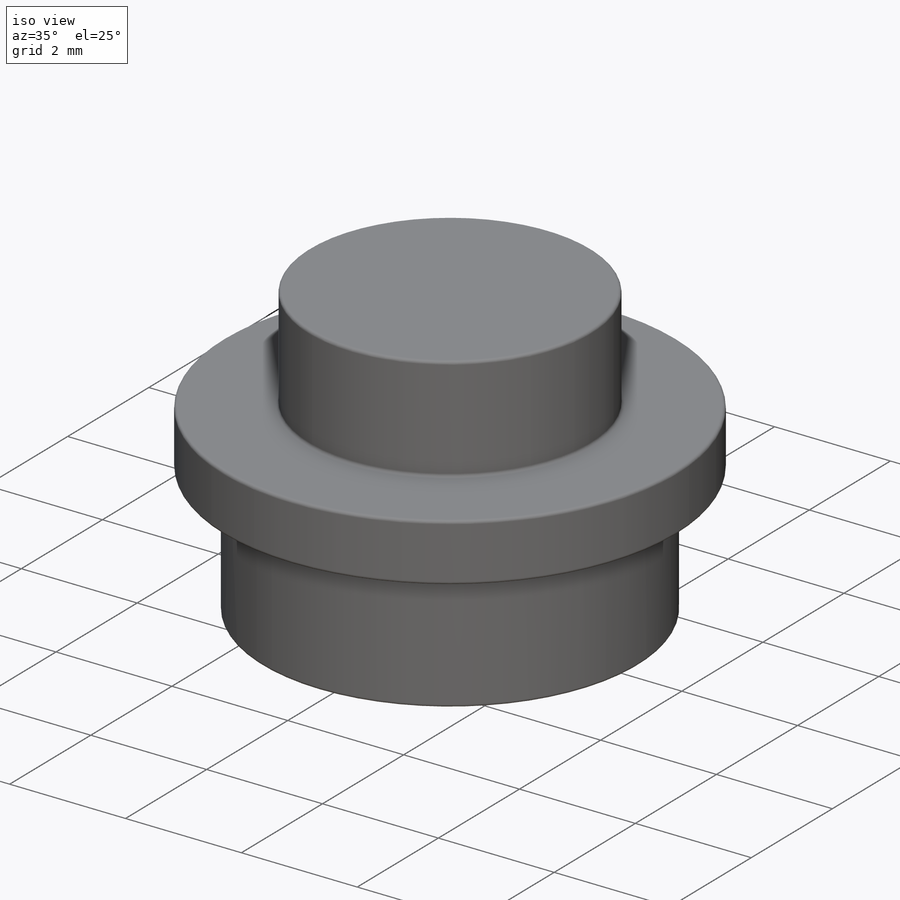
[diagram: iso view]
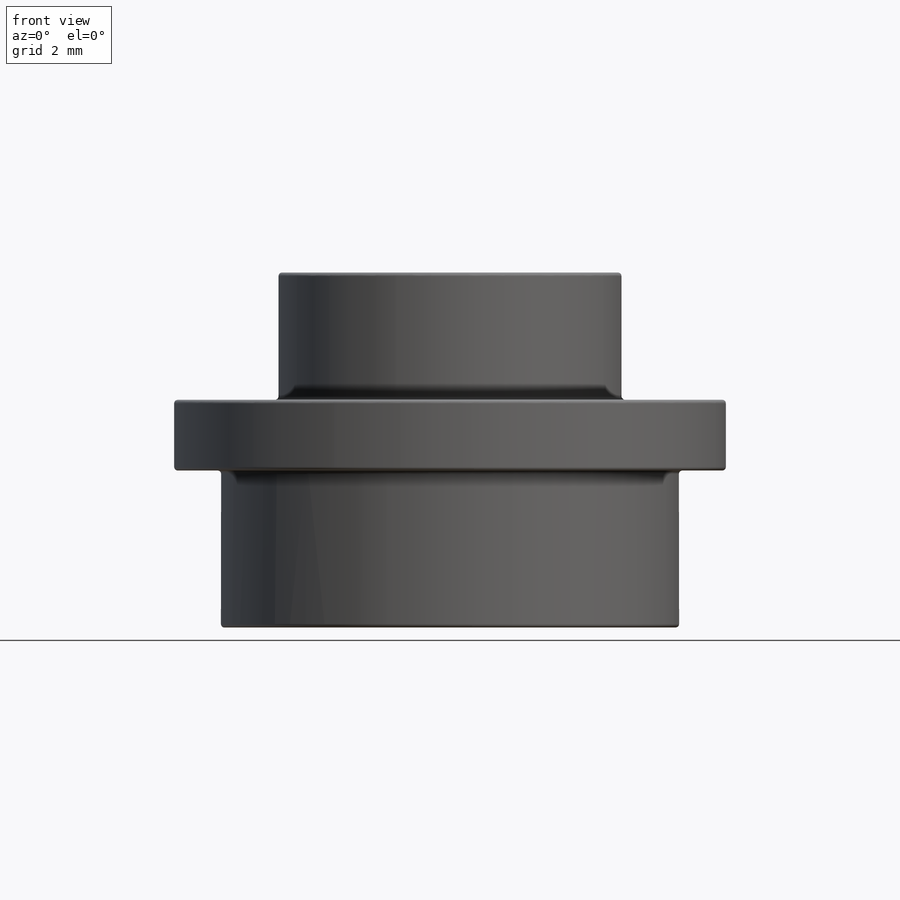
[diagram: front view]
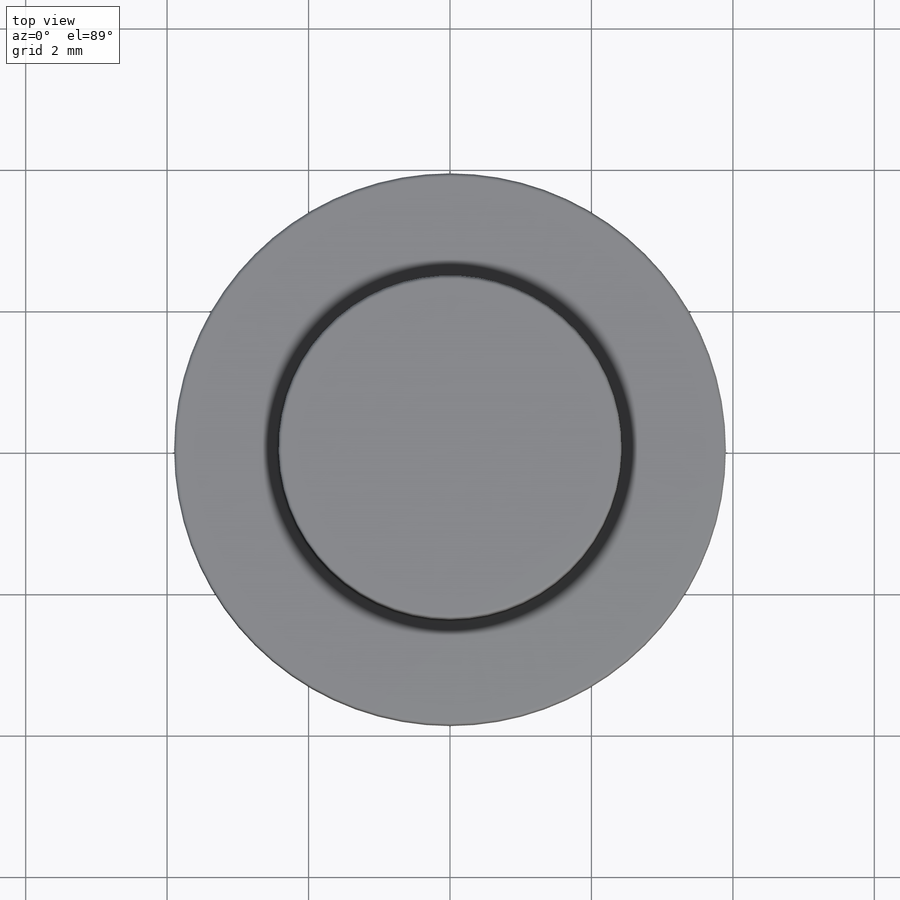
[diagram: top view]
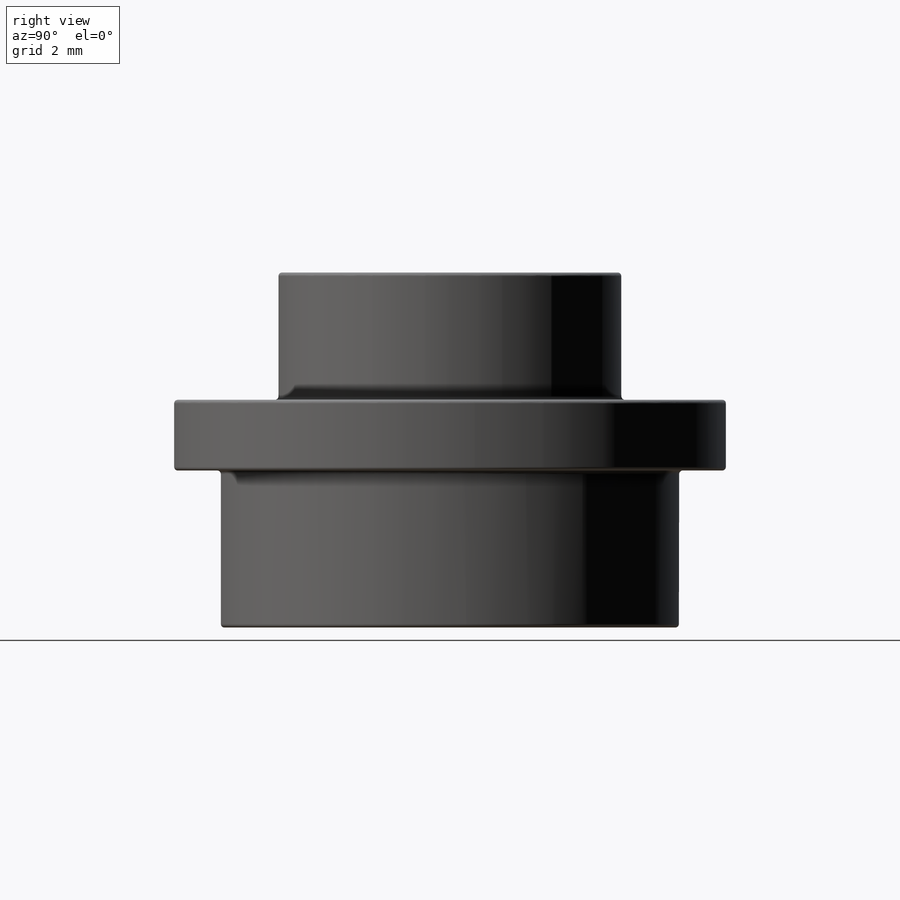
[diagram: right view]
SOLIDWORKS PART (.sldprt)
format: sldprt  version: not decoded by parser v0  size: 526,848 bytes
history: native  units: mm
features: sketch x3, extrude x2, material x1, cut_extrude x1, shell x1, fillet x1 (+14 scaffold rows collapsed)
feature tree (23):
  scaffold x14  (default folders/planes/origin — collapsed)
  material  "Material <not specified>"
  sketch  "Sketch1"  dims[D1=7.96mm]
  extrude  "Extrude1"  Depth=3.22mm
  sketch  "Sketch2"  dims[D1=4.85mm]
  extrude  "Extrude2"  Depth=1.8mm
  sketch  "Sketch3"  dims[D1=6.48mm]
  cut_extrude  "Extrude3"  Depth=1mm
  shell  "Shell1"  Thickness=1.55mm
  fillet  "Fillet1"  Radius=0.05mm
decode coverage: 8 of 8 modeling features carry decoded parameters
note: suppression state not decoded; provenance and decode notes live in map.json
